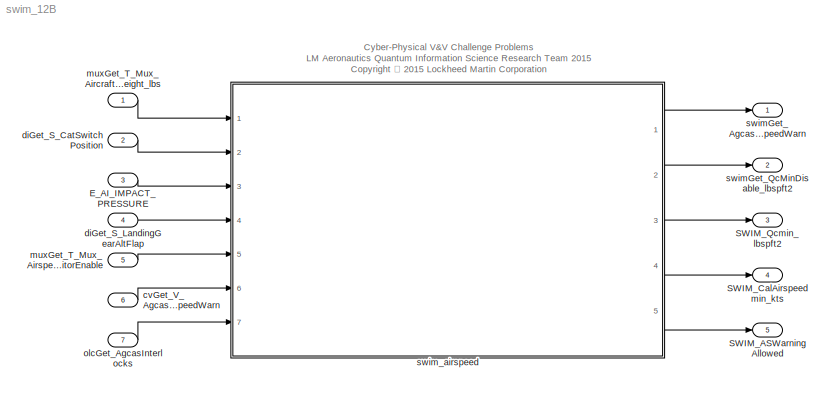
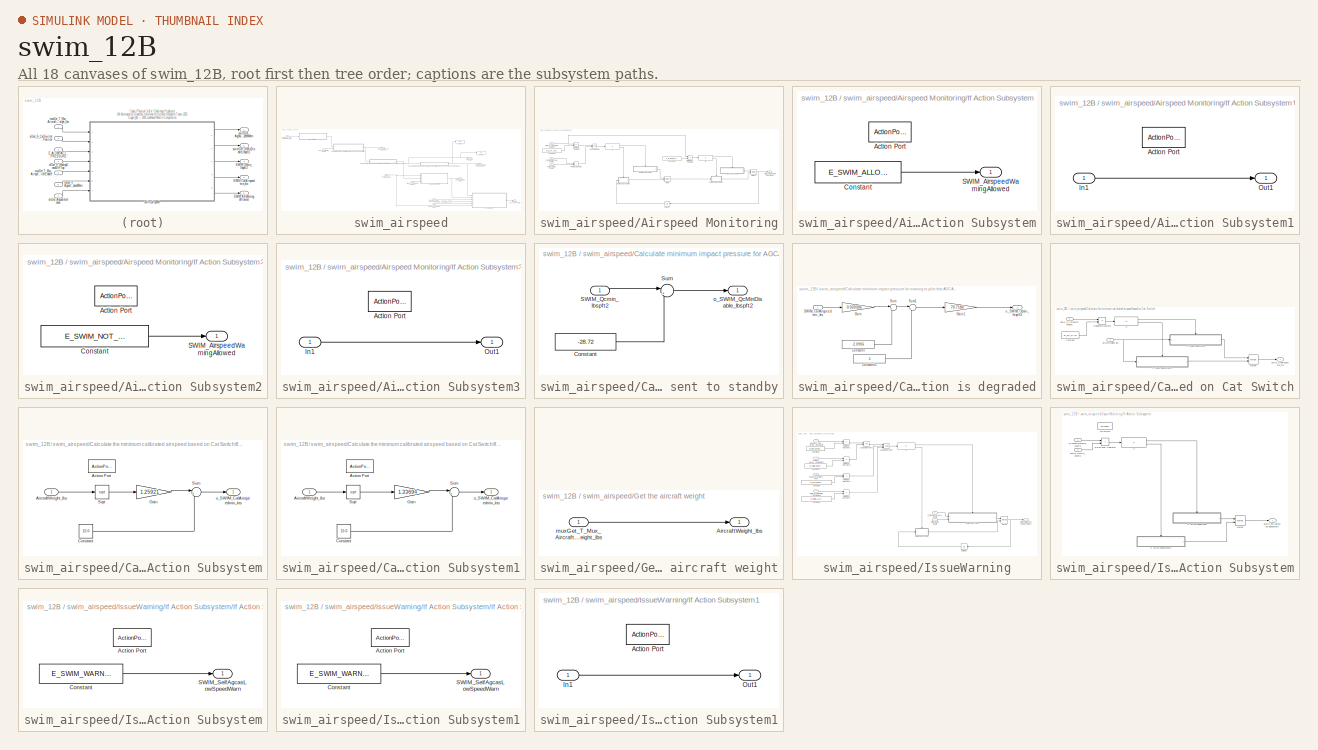
[diagram: thumbnail index - all 18 canvases of the model, root first then tree order]
MODEL swim_12B
KIND model
BLOCK [Inport] E_AI_IMPACT_PRESSURE
  IconDisplay = Port number
  OutDataTypeStr = double
  Port = 3
  SID = 126
BLOCK [Outport] SWIM_ASWarningAllowed
  IconDisplay = Port number
  Port = 5
  SID = 142
BLOCK [Outport] SWIM_CalAirspeedmin_kts
  IconDisplay = Port number
  Port = 4
  SID = 140
BLOCK [Outport] SWIM_Qcmin_lbspft2
  IconDisplay = Port number
  Port = 3
  SID = 134
BLOCK [Inport] cvGet_V_AgcasLowSpeedWarn
  IconDisplay = Port number
  OutDataTypeStr = boolean
  Port = 6
  SID = 129
BLOCK [Inport] diGet_S_CatSwitchPosition
  IconDisplay = Port number
  OutDataTypeStr = int32
  Port = 2
  SID = 125
BLOCK [Inport] diGet_S_LandingGearAltFlap
  IconDisplay = Port number
  OutDataTypeStr = boolean
  Port = 4
  SID = 127
BLOCK [Inport] muxGet_T_Mux_AircraftGrossWeight_lbs
  IconDisplay = Port number
  OutDataTypeStr = double
  SID = 124
BLOCK [Inport] muxGet_T_Mux_AirspeedMonitorEnable
  IconDisplay = Port number
  OutDataTypeStr = boolean
  Port = 5
  SID = 128
BLOCK [Inport] olcGet_AgcasInterlocks
  IconDisplay = Port number
  OutDataTypeStr = boolean
  Port = 7
  SID = 130
BLOCK [Outport] swimGet_AgcasLowSpeedWarn
  IconDisplay = Port number
  SID = 131
BLOCK [Outport] swimGet_QcMinDisable_lbspft2
  IconDisplay = Port number
  Port = 2
  SID = 132
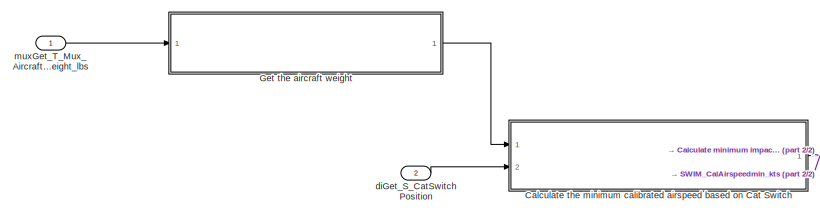
[diagram: swim_airspeed - part 1/2, top left region]
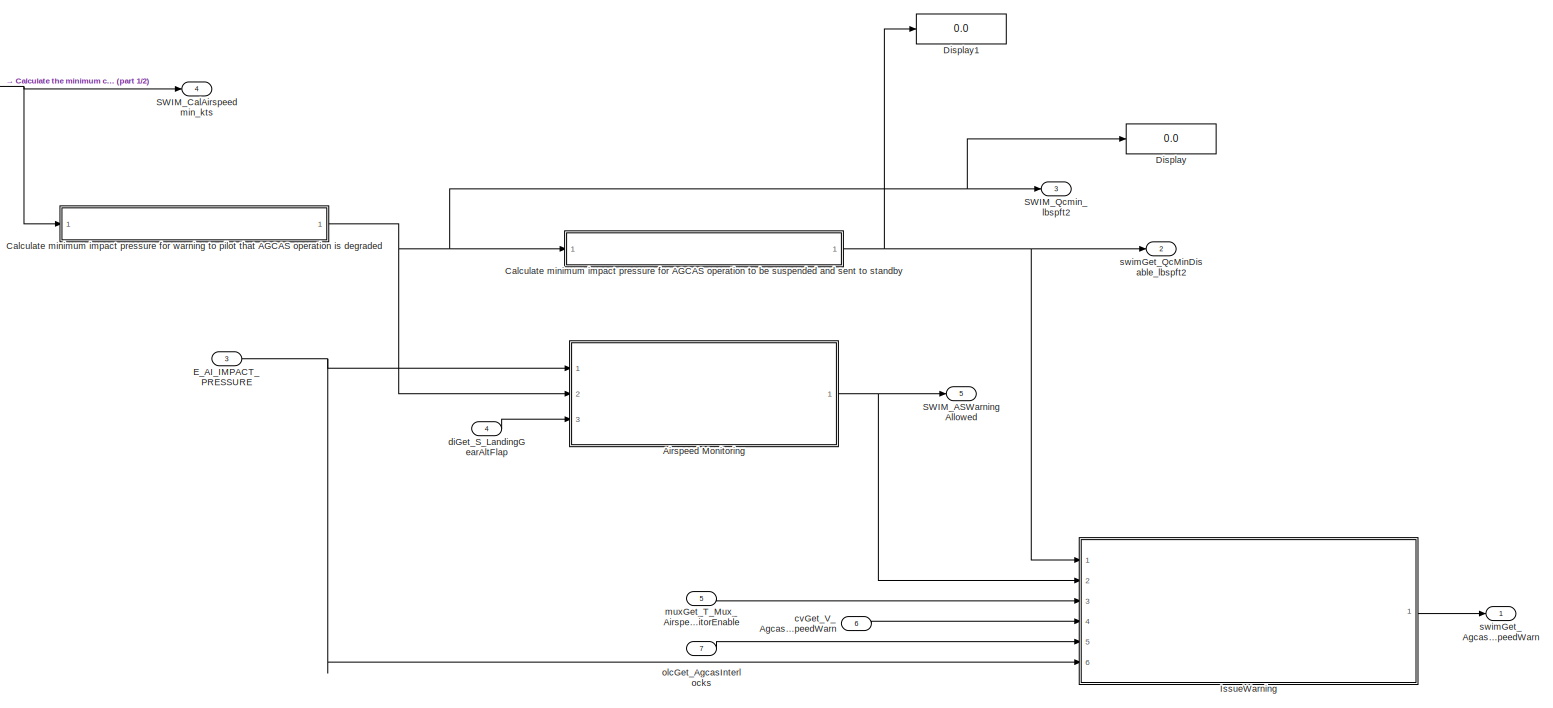
[diagram: swim_airspeed - part 2/2, right side, full height]
BLOCK [SubSystem] swim_airspeed
  FunctionWithSeparateData = off
  MaskHideContents = off
  MinAlgLoopOccurrences = off
  Opaque = off
  Ports = [7, 5]
  PropExecContextOutsideSubsystem = off
  RTWSystemCode = Auto
  RequestExecContextInheritance = off
  SID = 1
BLOCK [SubSystem] swim_airspeed/Airspeed Monitoring
  FunctionWithSeparateData = off
  MaskHideContents = off
  MinAlgLoopOccurrences = off
  Opaque = off
  Ports = [3, 1]
  PropExecContextOutsideSubsystem = off
  RTWSystemCode = Auto
  RequestExecContextInheritance = off
  SID = 9
BLOCK [Constant] swim_airspeed/Airspeed Monitoring/Constant1
  SID = 13
  Value = E_DI_UP_AND_NORMAL
BLOCK [Constant] swim_airspeed/Airspeed Monitoring/Constant2
  SID = 14
  Value = E_DI_DOWN_OR_LOCKED
BLOCK [If] swim_airspeed/Airspeed Monitoring/If
  IfExpression = u1
  Ports = [1, 2]
  SID = 15
BLOCK [SubSystem] swim_airspeed/Airspeed Monitoring/If Action Subsystem
  FunctionWithSeparateData = off
  MaskHideContents = off
  MinAlgLoopOccurrences = off
  Opaque = off
  Ports = [0, 1, 0, 0, 0, 0, 0, 1]
  PropExecContextOutsideSubsystem = off
  RTWSystemCode = Auto
  RequestExecContextInheritance = off
  SID = 16
  TreatAsAtomicUnit = on
BLOCK [ActionPort] swim_airspeed/Airspeed Monitoring/If Action Subsystem/Action Port
  ActionType = then
  SID = 17
BLOCK [Constant] swim_airspeed/Airspeed Monitoring/If Action Subsystem/Constant
  SID = 18
  Value = E_SWIM_ALLOWED
BLOCK [Outport] swim_airspeed/Airspeed Monitoring/If Action Subsystem/SWIM_AirspeedWarningAllowed
  IconDisplay = Port number
  SID = 19
BLOCK [SubSystem] swim_airspeed/Airspeed Monitoring/If Action Subsystem1
  FunctionWithSeparateData = off
  MaskHideContents = off
  MinAlgLoopOccurrences = off
  Opaque = off
  Ports = [1, 1, 0, 0, 0, 0, 0, 1]
  PropExecContextOutsideSubsystem = off
  RTWSystemCode = Auto
  RequestExecContextInheritance = off
  SID = 20
  TreatAsAtomicUnit = on
BLOCK [ActionPort] swim_airspeed/Airspeed Monitoring/If Action Subsystem1/Action Port
  ActionType = else
  SID = 22
BLOCK [Inport] swim_airspeed/Airspeed Monitoring/If Action Subsystem1/In1
  IconDisplay = Port number
  SID = 21
BLOCK [Outport] swim_airspeed/Airspeed Monitoring/If Action Subsystem1/Out1
  IconDisplay = Port number
  SID = 23
BLOCK [SubSystem] swim_airspeed/Airspeed Monitoring/If Action Subsystem2
  FunctionWithSeparateData = off
  MaskHideContents = off
  MinAlgLoopOccurrences = off
  Opaque = off
  Ports = [0, 1, 0, 0, 0, 0, 0, 1]
  PropExecContextOutsideSubsystem = off
  RTWSystemCode = Auto
  RequestExecContextInheritance = off
  SID = 24
  TreatAsAtomicUnit = on
BLOCK [ActionPort] swim_airspeed/Airspeed Monitoring/If Action Subsystem2/Action Port
  ActionType = then
  SID = 25
BLOCK [Constant] swim_airspeed/Airspeed Monitoring/If Action Subsystem2/Constant
  SID = 26
  Value = E_SWIM_NOT_ALLOWED
BLOCK [Outport] swim_airspeed/Airspeed Monitoring/If Action Subsystem2/SWIM_AirspeedWarningAllowed
  IconDisplay = Port number
  SID = 27
BLOCK [SubSystem] swim_airspeed/Airspeed Monitoring/If Action Subsystem3
  FunctionWithSeparateData = off
  MaskHideContents = off
  MinAlgLoopOccurrences = off
  Opaque = off
  Ports = [1, 1, 0, 0, 0, 0, 0, 1]
  PropExecContextOutsideSubsystem = off
  RTWSystemCode = Auto
  RequestExecContextInheritance = off
  SID = 28
  TreatAsAtomicUnit = on
BLOCK [ActionPort] swim_airspeed/Airspeed Monitoring/If Action Subsystem3/Action Port
  ActionType = else
  SID = 30
BLOCK [Inport] swim_airspeed/Airspeed Monitoring/If Action Subsystem3/In1
  IconDisplay = Port number
  SID = 29
BLOCK [Outport] swim_airspeed/Airspeed Monitoring/If Action Subsystem3/Out1
  IconDisplay = Port number
  SID = 31
BLOCK [If] swim_airspeed/Airspeed Monitoring/If1
  IfExpression = u1
  Ports = [1, 2]
  SID = 32
BLOCK [Logic] swim_airspeed/Airspeed Monitoring/Logical Operator
  AllPortsSameDT = off
  OutDataTypeStr = boolean
  Ports = [2, 1]
  SID = 33
BLOCK [Merge] swim_airspeed/Airspeed Monitoring/Merge
  Ports = [2, 1]
  SID = 34
BLOCK [Merge] swim_airspeed/Airspeed Monitoring/Merge1
  Ports = [2, 1]
  SID = 35
BLOCK [RelationalOperator] swim_airspeed/Airspeed Monitoring/Relational Operator
  InputSameDT = off
  Operator = >
  OutDataTypeStr = boolean
  Ports = [2, 1]
  SID = 36
BLOCK [RelationalOperator] swim_airspeed/Airspeed Monitoring/Relational Operator2
  InputSameDT = off
  Operator = ==
  OutDataTypeStr = boolean
  Ports = [2, 1]
  SID = 37
BLOCK [RelationalOperator] swim_airspeed/Airspeed Monitoring/Relational Operator3
  InputSameDT = off
  Operator = ==
  OutDataTypeStr = boolean
  Ports = [2, 1]
  SID = 38
BLOCK [Outport] swim_airspeed/Airspeed Monitoring/SWIM_AirspeedWarningAllowed
  IconDisplay = Port number
  SID = 40
BLOCK [Inport] swim_airspeed/Airspeed Monitoring/SWIM_Qcmin_lbspft2
  IconDisplay = Port number
  Port = 2
  SID = 11
BLOCK [Inport] swim_airspeed/Airspeed Monitoring/S_ImpactPressure_lbspft2
  IconDisplay = Port number
  SID = 10
BLOCK [UnitDelay] swim_airspeed/Airspeed Monitoring/Unit Delay
  InitialCondition = E_SWIM_NOT_ALLOWED
  InputProcessing = Elements as channels (sample based)
  SID = 39
  SampleTime = -1
BLOCK [Inport] swim_airspeed/Airspeed Monitoring/diGet_S_LandingGearAltFlap
  IconDisplay = Port number
  Port = 3
  SID = 12
BLOCK [SubSystem] swim_airspeed/Calculate minimum impact pressure for AGCAS operation to be suspended and sent to standby
  FunctionWithSeparateData = off
  MaskHideContents = off
  MinAlgLoopOccurrences = off
  Opaque = off
  Ports = [1, 1]
  PropExecContextOutsideSubsystem = off
  RTWSystemCode = Auto
  RequestExecContextInheritance = off
  SID = 41
BLOCK [Constant] swim_airspeed/Calculate minimum impact pressure for AGCAS operation to be suspended and sent to standby/Constant
  SID = 43
  Value = -28.72
BLOCK [Inport] swim_airspeed/Calculate minimum impact pressure for AGCAS operation to be suspended and sent to standby/SWIM_Qcmin_lbspft2
  IconDisplay = Port number
  SID = 42
BLOCK [Sum] swim_airspeed/Calculate minimum impact pressure for AGCAS operation to be suspended and sent to standby/Sum
  IconShape = round
  InputSameDT = off
  Inputs = |++
  OutDataTypeStr = Inherit: Inherit via internal rule
  Ports = [2, 1]
  SID = 44
  SaturateOnIntegerOverflow = off
BLOCK [Outport] swim_airspeed/Calculate minimum impact pressure for AGCAS operation to be suspended and sent to standby/o_SWIM_QcMinDisable_lbspft2
  IconDisplay = Port number
  SID = 45
BLOCK [SubSystem] swim_airspeed/Calculate minimum impact pressure for warning to pilot that AGCAS operation is degraded
  FunctionWithSeparateData = off
  MaskHideContents = off
  MinAlgLoopOccurrences = off
  Opaque = off
  Ports = [1, 1]
  PropExecContextOutsideSubsystem = off
  RTWSystemCode = Auto
  RequestExecContextInheritance = off
  SID = 46
BLOCK [Constant] swim_airspeed/Calculate minimum impact pressure for warning to pilot that AGCAS operation is degraded/Constant
  SID = 48
  Value = -2.0906
BLOCK [Constant] swim_airspeed/Calculate minimum impact pressure for warning to pilot that AGCAS operation is degraded/Constant1
  SID = 49
  Value = .1
BLOCK [Gain] swim_airspeed/Calculate minimum impact pressure for warning to pilot that AGCAS operation is degraded/Gain
  Gain = 0.020306
  OutDataTypeStr = Inherit: Inherit via internal rule
  ParamDataTypeStr = Inherit: Inherit via internal rule
  SID = 50
  SaturateOnIntegerOverflow = off
BLOCK [Gain] swim_airspeed/Calculate minimum impact pressure for warning to pilot that AGCAS operation is degraded/Gain1
  Gain = 70.7184
  OutDataTypeStr = Inherit: Inherit via internal rule
  ParamDataTypeStr = Inherit: Inherit via internal rule
  SID = 51
  SaturateOnIntegerOverflow = off
BLOCK [Inport] swim_airspeed/Calculate minimum impact pressure for warning to pilot that AGCAS operation is degraded/SWIM_CalAirspeedmin_kts
  IconDisplay = Port number
  SID = 47
BLOCK [Sum] swim_airspeed/Calculate minimum impact pressure for warning to pilot that AGCAS operation is degraded/Sum
  IconShape = round
  InputSameDT = off
  Inputs = |++
  OutDataTypeStr = Inherit: Inherit via internal rule
  Ports = [2, 1]
  SID = 52
  SaturateOnIntegerOverflow = off
BLOCK [Sum] swim_airspeed/Calculate minimum impact pressure for warning to pilot that AGCAS operation is degraded/Sum1
  IconShape = round
  InputSameDT = off
  Inputs = |++
  OutDataTypeStr = Inherit: Inherit via internal rule
  Ports = [2, 1]
  SID = 53
  SaturateOnIntegerOverflow = off
BLOCK [Outport] swim_airspeed/Calculate minimum impact pressure for warning to pilot that AGCAS operation is degraded/o_SWIM_Qcmin_lbspft2
  IconDisplay = Port number
  SID = 54
BLOCK [SubSystem] swim_airspeed/Calculate the minimum calibrated airspeed based on Cat Switch
  FunctionWithSeparateData = off
  MaskHideContents = off
  MinAlgLoopOccurrences = off
  Opaque = off
  Ports = [2, 1]
  PropExecContextOutsideSubsystem = off
  RTWSystemCode = Auto
  RequestExecContextInheritance = off
  SID = 55
BLOCK [Inport] swim_airspeed/Calculate the minimum calibrated airspeed based on Cat Switch/AircraftWeight_lbs
  IconDisplay = Port number
  SID = 56
BLOCK [Constant] swim_airspeed/Calculate the minimum calibrated airspeed based on Cat Switch/Constant
  SID = 58
  Value = E_DI_CATI
BLOCK [If] swim_airspeed/Calculate the minimum calibrated airspeed based on Cat Switch/If
  IfExpression = u1
  Ports = [1, 2]
  SID = 59
BLOCK [SubSystem] swim_airspeed/Calculate the minimum calibrated airspeed based on Cat Switch/If Action Subsystem
  FunctionWithSeparateData = off
  MaskHideContents = off
  MinAlgLoopOccurrences = off
  Opaque = off
  Ports = [1, 1, 0, 0, 0, 0, 0, 1]
  PropExecContextOutsideSubsystem = off
  RTWSystemCode = Auto
  RequestExecContextInheritance = off
  SID = 60
  TreatAsAtomicUnit = on
BLOCK [ActionPort] swim_airspeed/Calculate the minimum calibrated airspeed based on Cat Switch/If Action Subsystem/Action Port
  ActionType = then
  SID = 62
BLOCK [Inport] swim_airspeed/Calculate the minimum calibrated airspeed based on Cat Switch/If Action Subsystem/AircraftWeight_lbs
  IconDisplay = Port number
  SID = 61
BLOCK [Constant] swim_airspeed/Calculate the minimum calibrated airspeed based on Cat Switch/If Action Subsystem/Constant
  SID = 63
  Value = 10.0
BLOCK [Gain] swim_airspeed/Calculate the minimum calibrated airspeed based on Cat Switch/If Action Subsystem/Gain
  Gain = 1.25921
  OutDataTypeStr = Inherit: Inherit via internal rule
  ParamDataTypeStr = Inherit: Inherit via internal rule
  SID = 64
  SaturateOnIntegerOverflow = off
BLOCK [Sqrt] swim_airspeed/Calculate the minimum calibrated airspeed based on Cat Switch/If Action Subsystem/Sqrt
  SID = 137
BLOCK [Sum] swim_airspeed/Calculate the minimum calibrated airspeed based on Cat Switch/If Action Subsystem/Sum
  IconShape = round
  InputSameDT = off
  Inputs = |++
  OutDataTypeStr = Inherit: Inherit via internal rule
  Ports = [2, 1]
  SID = 66
  SaturateOnIntegerOverflow = off
BLOCK [Outport] swim_airspeed/Calculate the minimum calibrated airspeed based on Cat Switch/If Action Subsystem/o_SWIM_CalAirspeedmin_kts
  IconDisplay = Port number
  SID = 67
BLOCK [SubSystem] swim_airspeed/Calculate the minimum calibrated airspeed based on Cat Switch/If Action Subsystem1
  FunctionWithSeparateData = off
  MaskHideContents = off
  MinAlgLoopOccurrences = off
  Opaque = off
  Ports = [1, 1, 0, 0, 0, 0, 0, 1]
  PropExecContextOutsideSubsystem = off
  RTWSystemCode = Auto
  RequestExecContextInheritance = off
  SID = 68
  TreatAsAtomicUnit = on
BLOCK [ActionPort] swim_airspeed/Calculate the minimum calibrated airspeed based on Cat Switch/If Action Subsystem1/Action Port
  ActionType = else
  SID = 70
BLOCK [Inport] swim_airspeed/Calculate the minimum calibrated airspeed based on Cat Switch/If Action Subsystem1/AircraftWeight_lbs
  IconDisplay = Port number
  SID = 69
BLOCK [Constant] swim_airspeed/Calculate the minimum calibrated airspeed based on Cat Switch/If Action Subsystem1/Constant
  SID = 71
  Value = 10.0
BLOCK [Gain] swim_airspeed/Calculate the minimum calibrated airspeed based on Cat Switch/If Action Subsystem1/Gain
  Gain = 1.33694
  OutDataTypeStr = Inherit: Inherit via internal rule
  ParamDataTypeStr = Inherit: Inherit via internal rule
  SID = 72
  SaturateOnIntegerOverflow = off
BLOCK [Sqrt] swim_airspeed/Calculate the minimum calibrated airspeed based on Cat Switch/If Action Subsystem1/Sqrt
  SID = 138
BLOCK [Sum] swim_airspeed/Calculate the minimum calibrated airspeed based on Cat Switch/If Action Subsystem1/Sum
  IconShape = round
  InputSameDT = off
  Inputs = |++
  OutDataTypeStr = Inherit: Inherit via internal rule
  Ports = [2, 1]
  SID = 74
  SaturateOnIntegerOverflow = off
BLOCK [Outport] swim_airspeed/Calculate the minimum calibrated airspeed based on Cat Switch/If Action Subsystem1/o_SWIM_CalAirspeedmin_kts
  IconDisplay = Port number
  SID = 75
BLOCK [Merge] swim_airspeed/Calculate the minimum calibrated airspeed based on Cat Switch/Merge
  Ports = [2, 1]
  SID = 76
BLOCK [RelationalOperator] swim_airspeed/Calculate the minimum calibrated airspeed based on Cat Switch/Relational Operator
  InputSameDT = off
  Operator = ==
  OutDataTypeStr = boolean
  Ports = [2, 1]
  SID = 77
BLOCK [Outport] swim_airspeed/Calculate the minimum calibrated airspeed based on Cat Switch/SWIM_CalAirspeedmin_kts
  IconDisplay = Port number
  SID = 78
BLOCK [Inport] swim_airspeed/Calculate the minimum calibrated airspeed based on Cat Switch/diGet_S_CatSwitchPosition
  IconDisplay = Port number
  Port = 2
  SID = 57
BLOCK [Display] swim_airspeed/Display
  Decimation = 1
  Lockdown = off
  Ports = [1]
  SID = 135
BLOCK [Display] swim_airspeed/Display1
  Decimation = 1
  Lockdown = off
  Ports = [1]
  SID = 136
BLOCK [Inport] swim_airspeed/E_AI_IMPACT_PRESSURE
  IconDisplay = Port number
  Port = 3
  SID = 4
BLOCK [SubSystem] swim_airspeed/Get the aircraft weight
  FunctionWithSeparateData = off
  MaskHideContents = off
  MinAlgLoopOccurrences = off
  Opaque = off
  Ports = [1, 1]
  PropExecContextOutsideSubsystem = off
  RTWSystemCode = Auto
  RequestExecContextInheritance = off
  SID = 79
BLOCK [Outport] swim_airspeed/Get the aircraft weight/AircraftWeight_lbs
  IconDisplay = Port number
  SID = 81
BLOCK [Inport] swim_airspeed/Get the aircraft weight/muxGet_T_Mux_AircraftGrossWeight_lbs
  IconDisplay = Port number
  SID = 80
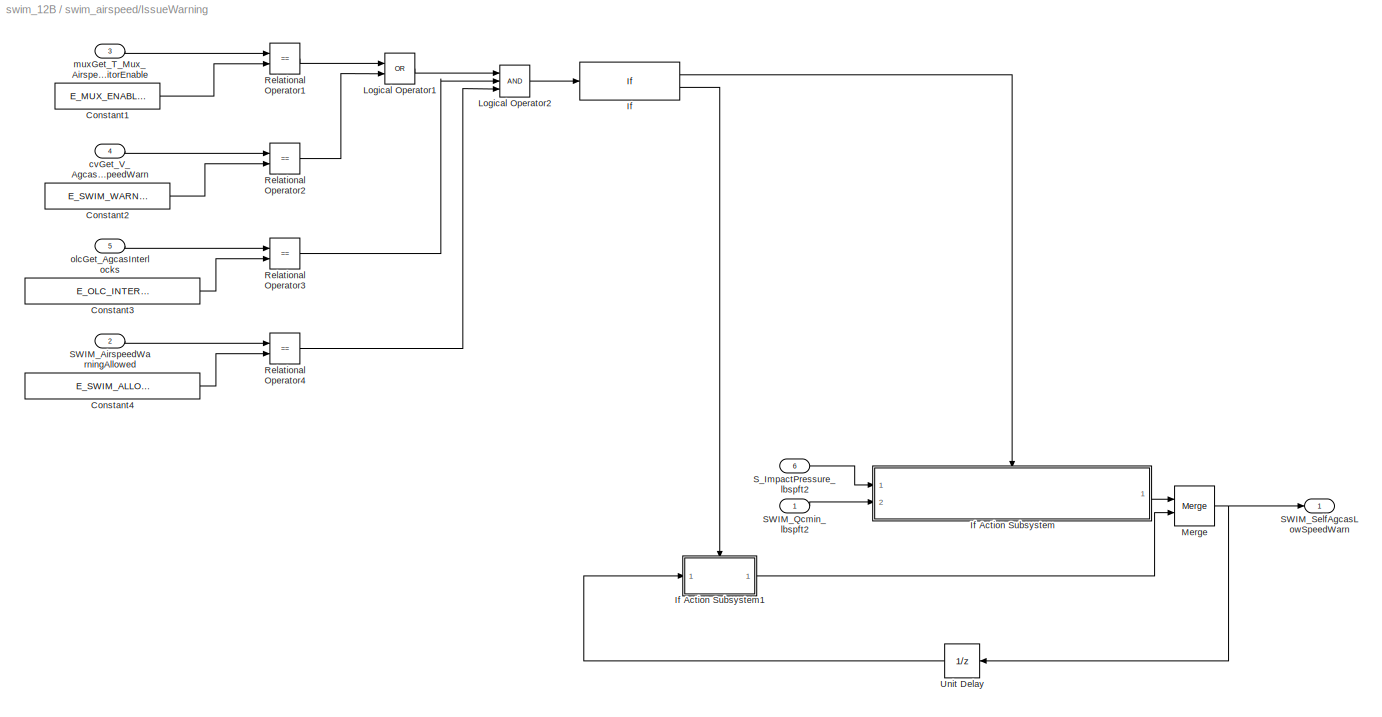
BLOCK [SubSystem] swim_airspeed/IssueWarning
  FunctionWithSeparateData = off
  MaskHideContents = off
  MinAlgLoopOccurrences = off
  Opaque = off
  Ports = [6, 1]
  PropExecContextOutsideSubsystem = off
  RTWSystemCode = Auto
  RequestExecContextInheritance = off
  SID = 82
BLOCK [Constant] swim_airspeed/IssueWarning/Constant1
  SID = 88
  Value = E_MUX_ENABLED
BLOCK [Constant] swim_airspeed/IssueWarning/Constant2
  SID = 89
  Value = E_SWIM_WARNING_ON
BLOCK [Constant] swim_airspeed/IssueWarning/Constant3
  SID = 90
  Value = E_OLC_INTERLOCK_NOT_FAILED
BLOCK [Constant] swim_airspeed/IssueWarning/Constant4
  SID = 91
  Value = E_SWIM_ALLOWED
BLOCK [If] swim_airspeed/IssueWarning/If
  IfExpression = u1
  Ports = [1, 2]
  SID = 92
BLOCK [SubSystem] swim_airspeed/IssueWarning/If Action Subsystem
  FunctionWithSeparateData = off
  MaskHideContents = off
  MinAlgLoopOccurrences = off
  Opaque = off
  Ports = [2, 1, 0, 0, 0, 0, 0, 1]
  PropExecContextOutsideSubsystem = off
  RTWSystemCode = Auto
  RequestExecContextInheritance = off
  SID = 93
  TreatAsAtomicUnit = on
BLOCK [ActionPort] swim_airspeed/IssueWarning/If Action Subsystem/Action Port
  ActionType = then
  SID = 96
BLOCK [If] swim_airspeed/IssueWarning/If Action Subsystem/If
  IfExpression = u1
  Ports = [1, 2]
  SID = 97
BLOCK [SubSystem] swim_airspeed/IssueWarning/If Action Subsystem/If Action Subsystem
  FunctionWithSeparateData = off
  MaskHideContents = off
  MinAlgLoopOccurrences = off
  Opaque = off
  Ports = [0, 1, 0, 0, 0, 0, 0, 1]
  PropExecContextOutsideSubsystem = off
  RTWSystemCode = Auto
  RequestExecContextInheritance = off
  SID = 98
  TreatAsAtomicUnit = on
BLOCK [ActionPort] swim_airspeed/IssueWarning/If Action Subsystem/If Action Subsystem/Action Port
  ActionType = then
  SID = 99
BLOCK [Constant] swim_airspeed/IssueWarning/If Action Subsystem/If Action Subsystem/Constant
  SID = 100
  Value = E_SWIM_WARNING_ON
BLOCK [Outport] swim_airspeed/IssueWarning/If Action Subsystem/If Action Subsystem/SWIM_SelfAgcasLowSpeedWarn
  IconDisplay = Port number
  SID = 101
BLOCK [SubSystem] swim_airspeed/IssueWarning/If Action Subsystem/If Action Subsystem1
  FunctionWithSeparateData = off
  MaskHideContents = off
  MinAlgLoopOccurrences = off
  Opaque = off
  Ports = [0, 1, 0, 0, 0, 0, 0, 1]
  PropExecContextOutsideSubsystem = off
  RTWSystemCode = Auto
  RequestExecContextInheritance = off
  SID = 102
  TreatAsAtomicUnit = on
BLOCK [ActionPort] swim_airspeed/IssueWarning/If Action Subsystem/If Action Subsystem1/Action Port
  ActionType = else
  SID = 103
BLOCK [Constant] swim_airspeed/IssueWarning/If Action Subsystem/If Action Subsystem1/Constant
  SID = 104
  Value = E_SWIM_WARNING_OFF
BLOCK [Outport] swim_airspeed/IssueWarning/If Action Subsystem/If Action Subsystem1/SWIM_SelfAgcasLowSpeedWarn
  IconDisplay = Port number
  SID = 105
BLOCK [Merge] swim_airspeed/IssueWarning/If Action Subsystem/Merge
  Ports = [2, 1]
  SID = 106
BLOCK [RelationalOperator] swim_airspeed/IssueWarning/If Action Subsystem/Relational Operator
  InputSameDT = off
  Operator = <
  OutDataTypeStr = boolean
  Ports = [2, 1]
  SID = 107
BLOCK [Inport] swim_airspeed/IssueWarning/If Action Subsystem/SWIM_Qcmin_lbspft2
  IconDisplay = Port number
  Port = 2
  SID = 95
BLOCK [Outport] swim_airspeed/IssueWarning/If Action Subsystem/SWIM_SelfAgcasLowSpeedWarn
  IconDisplay = Port number
  SID = 108
BLOCK [Inport] swim_airspeed/IssueWarning/If Action Subsystem/S_ImpactPressure_lbspft2
  IconDisplay = Port number
  SID = 94
BLOCK [SubSystem] swim_airspeed/IssueWarning/If Action Subsystem1
  FunctionWithSeparateData = off
  MaskHideContents = off
  MinAlgLoopOccurrences = off
  Opaque = off
  Ports = [1, 1, 0, 0, 0, 0, 0, 1]
  PropExecContextOutsideSubsystem = off
  RTWSystemCode = Auto
  RequestExecContextInheritance = off
  SID = 109
  TreatAsAtomicUnit = on
BLOCK [ActionPort] swim_airspeed/IssueWarning/If Action Subsystem1/Action Port
  ActionType = else
  SID = 111
BLOCK [Inport] swim_airspeed/IssueWarning/If Action Subsystem1/In1
  IconDisplay = Port number
  SID = 110
BLOCK [Outport] swim_airspeed/IssueWarning/If Action Subsystem1/Out1
  IconDisplay = Port number
  SID = 112
BLOCK [Logic] swim_airspeed/IssueWarning/Logical Operator1
  AllPortsSameDT = off
  Operator = OR
  OutDataTypeStr = boolean
  Ports = [2, 1]
  SID = 113
BLOCK [Logic] swim_airspeed/IssueWarning/Logical Operator2
  AllPortsSameDT = off
  Inputs = 3
  OutDataTypeStr = boolean
  Ports = [3, 1]
  SID = 114
BLOCK [Merge] swim_airspeed/IssueWarning/Merge
  Ports = [2, 1]
  SID = 115
BLOCK [RelationalOperator] swim_airspeed/IssueWarning/Relational Operator1
  InputSameDT = off
  Operator = ==
  OutDataTypeStr = boolean
  Ports = [2, 1]
  SID = 116
BLOCK [RelationalOperator] swim_airspeed/IssueWarning/Relational Operator2
  InputSameDT = off
  Operator = ==
  OutDataTypeStr = boolean
  Ports = [2, 1]
  SID = 117
BLOCK [RelationalOperator] swim_airspeed/IssueWarning/Relational Operator3
  InputSameDT = off
  Operator = ==
  OutDataTypeStr = boolean
  Ports = [2, 1]
  SID = 118
BLOCK [RelationalOperator] swim_airspeed/IssueWarning/Relational Operator4
  InputSameDT = off
  Operator = ==
  OutDataTypeStr = boolean
  Ports = [2, 1]
  SID = 119
BLOCK [Inport] swim_airspeed/IssueWarning/SWIM_AirspeedWarningAllowed
  IconDisplay = Port number
  Port = 2
  SID = 86
BLOCK [Inport] swim_airspeed/IssueWarning/SWIM_Qcmin_lbspft2
  IconDisplay = Port number
  SID = 87
BLOCK [Outport] swim_airspeed/IssueWarning/SWIM_SelfAgcasLowSpeedWarn
  IconDisplay = Port number
  SID = 121
BLOCK [Inport] swim_airspeed/IssueWarning/S_ImpactPressure_lbspft2
  IconDisplay = Port number
  Port = 6
  SID = 143
BLOCK [UnitDelay] swim_airspeed/IssueWarning/Unit Delay
  InitialCondition = E_SWIM_WARNING_OFF
  InputProcessing = Elements as channels (sample based)
  SID = 120
  SampleTime = -1
BLOCK [Inport] swim_airspeed/IssueWarning/cvGet_V_AgcasLowSpeedWarn
  IconDisplay = Port number
  Port = 4
  SID = 84
BLOCK [Inport] swim_airspeed/IssueWarning/muxGet_T_Mux_AirspeedMonitorEnable
  IconDisplay = Port number
  Port = 3
  SID = 83
BLOCK [Inport] swim_airspeed/IssueWarning/olcGet_AgcasInterlocks
  IconDisplay = Port number
  Port = 5
  SID = 85
BLOCK [Outport] swim_airspeed/SWIM_ASWarningAllowed
  IconDisplay = Port number
  Port = 5
  SID = 141
BLOCK [Outport] swim_airspeed/SWIM_CalAirspeedmin_kts
  IconDisplay = Port number
  Port = 4
  SID = 139
BLOCK [Outport] swim_airspeed/SWIM_Qcmin_lbspft2
  IconDisplay = Port number
  Port = 3
  SID = 133
BLOCK [Inport] swim_airspeed/cvGet_V_AgcasLowSpeedWarn
  IconDisplay = Port number
  Port = 6
  SID = 7
BLOCK [Inport] swim_airspeed/diGet_S_CatSwitchPosition
  IconDisplay = Port number
  Port = 2
  SID = 3
BLOCK [Inport] swim_airspeed/diGet_S_LandingGearAltFlap
  IconDisplay = Port number
  Port = 4
  SID = 5
BLOCK [Inport] swim_airspeed/muxGet_T_Mux_AircraftGrossWeight_lbs
  IconDisplay = Port number
  SID = 2
BLOCK [Inport] swim_airspeed/muxGet_T_Mux_AirspeedMonitorEnable
  IconDisplay = Port number
  Port = 5
  SID = 6
BLOCK [Inport] swim_airspeed/olcGet_AgcasInterlocks
  IconDisplay = Port number
  Port = 7
  SID = 8
BLOCK [Outport] swim_airspeed/swimGet_AgcasLowSpeedWarn
  IconDisplay = Port number
  SID = 122
BLOCK [Outport] swim_airspeed/swimGet_QcMinDisable_lbspft2
  IconDisplay = Port number
  Port = 2
  SID = 123
ANNOTATION (root): Cyber-Physical V&V Challenge Problems\nLM Aeronautics Quantum Information Science Research Team 2015\nCopyright <copyright redacted>
LINE E_AI_IMPACT_PRESSURE:1 -> swim_airspeed:3
LINE cvGet_V_AgcasLowSpeedWarn:1 -> swim_airspeed:6
LINE diGet_S_CatSwitchPosition:1 -> swim_airspeed:2
LINE diGet_S_LandingGearAltFlap:1 -> swim_airspeed:4
LINE muxGet_T_Mux_AircraftGrossWeight_lbs:1 -> swim_airspeed:1
LINE muxGet_T_Mux_AirspeedMonitorEnable:1 -> swim_airspeed:5
LINE olcGet_AgcasInterlocks:1 -> swim_airspeed:7
LINE swim_airspeed/Airspeed Monitoring/Constant1:1 -> swim_airspeed/Airspeed Monitoring/Relational Operator2:2
LINE swim_airspeed/Airspeed Monitoring/Constant2:1 -> swim_airspeed/Airspeed Monitoring/Relational Operator3:2
LINE swim_airspeed/Airspeed Monitoring/If Action Subsystem/Constant:1 -> swim_airspeed/Airspeed Monitoring/If Action Subsystem/SWIM_AirspeedWarningAllowed:1
LINE swim_airspeed/Airspeed Monitoring/If Action Subsystem1/In1:1 -> swim_airspeed/Airspeed Monitoring/If Action Subsystem1/Out1:1
LINE swim_airspeed/Airspeed Monitoring/If Action Subsystem1:1 -> swim_airspeed/Airspeed Monitoring/Merge:2
LINE swim_airspeed/Airspeed Monitoring/If Action Subsystem2/Constant:1 -> swim_airspeed/Airspeed Monitoring/If Action Subsystem2/SWIM_AirspeedWarningAllowed:1
LINE swim_airspeed/Airspeed Monitoring/If Action Subsystem2:1 -> swim_airspeed/Airspeed Monitoring/Merge1:1
LINE swim_airspeed/Airspeed Monitoring/If Action Subsystem3/In1:1 -> swim_airspeed/Airspeed Monitoring/If Action Subsystem3/Out1:1
LINE swim_airspeed/Airspeed Monitoring/If Action Subsystem3:1 -> swim_airspeed/Airspeed Monitoring/Merge1:2
LINE swim_airspeed/Airspeed Monitoring/If Action Subsystem:1 -> swim_airspeed/Airspeed Monitoring/Merge:1
LINE swim_airspeed/Airspeed Monitoring/If1:1 -> swim_airspeed/Airspeed Monitoring/If Action Subsystem2:ifaction
LINE swim_airspeed/Airspeed Monitoring/If1:2 -> swim_airspeed/Airspeed Monitoring/If Action Subsystem3:ifaction
LINE swim_airspeed/Airspeed Monitoring/If:1 -> swim_airspeed/Airspeed Monitoring/If Action Subsystem:ifaction
LINE swim_airspeed/Airspeed Monitoring/If:2 -> swim_airspeed/Airspeed Monitoring/If Action Subsystem1:ifaction
LINE swim_airspeed/Airspeed Monitoring/Logical Operator:1 -> swim_airspeed/Airspeed Monitoring/If:1
NET swim_airspeed/Airspeed Monitoring/Merge1:1 -> swim_airspeed/Airspeed Monitoring/SWIM_AirspeedWarningAllowed:1, swim_airspeed/Airspeed Monitoring/Unit Delay:1
LINE swim_airspeed/Airspeed Monitoring/Merge:1 -> swim_airspeed/Airspeed Monitoring/If Action Subsystem3:1
LINE swim_airspeed/Airspeed Monitoring/Relational Operator2:1 -> swim_airspeed/Airspeed Monitoring/Logical Operator:1
LINE swim_airspeed/Airspeed Monitoring/Relational Operator3:1 -> swim_airspeed/Airspeed Monitoring/If1:1
LINE swim_airspeed/Airspeed Monitoring/Relational Operator:1 -> swim_airspeed/Airspeed Monitoring/Logical Operator:2
LINE swim_airspeed/Airspeed Monitoring/SWIM_Qcmin_lbspft2:1 -> swim_airspeed/Airspeed Monitoring/Relational Operator:2
LINE swim_airspeed/Airspeed Monitoring/S_ImpactPressure_lbspft2:1 -> swim_airspeed/Airspeed Monitoring/Relational Operator:1
LINE swim_airspeed/Airspeed Monitoring/Unit Delay:1 -> swim_airspeed/Airspeed Monitoring/If Action Subsystem1:1
NET swim_airspeed/Airspeed Monitoring/diGet_S_LandingGearAltFlap:1 -> swim_airspeed/Airspeed Monitoring/Relational Operator2:1, swim_airspeed/Airspeed Monitoring/Relational Operator3:1
NET swim_airspeed/Airspeed Monitoring:1 -> swim_airspeed/IssueWarning:2, swim_airspeed/SWIM_ASWarningAllowed:1
LINE swim_airspeed/Calculate minimum impact pressure for AGCAS operation to be suspended and sent to standby/Constant:1 -> swim_airspeed/Calculate minimum impact pressure for AGCAS operation to be suspended and sent to standby/Sum:2
LINE swim_airspeed/Calculate minimum impact pressure for AGCAS operation to be suspended and sent to standby/SWIM_Qcmin_lbspft2:1 -> swim_airspeed/Calculate minimum impact pressure for AGCAS operation to be suspended and sent to standby/Sum:1
LINE swim_airspeed/Calculate minimum impact pressure for AGCAS operation to be suspended and sent to standby/Sum:1 -> swim_airspeed/Calculate minimum impact pressure for AGCAS operation to be suspended and sent to standby/o_SWIM_QcMinDisable_lbspft2:1
NET swim_airspeed/Calculate minimum impact pressure for AGCAS operation to be suspended and sent to standby:1 -> swim_airspeed/Display1:1, swim_airspeed/IssueWarning:1, swim_airspeed/swimGet_QcMinDisable_lbspft2:1
LINE swim_airspeed/Calculate minimum impact pressure for warning to pilot that AGCAS operation is degraded/Constant1:1 -> swim_airspeed/Calculate minimum impact pressure for warning to pilot that AGCAS operation is degraded/Sum1:2
LINE swim_airspeed/Calculate minimum impact pressure for warning to pilot that AGCAS operation is degraded/Constant:1 -> swim_airspeed/Calculate minimum impact pressure for warning to pilot that AGCAS operation is degraded/Sum:2
LINE swim_airspeed/Calculate minimum impact pressure for warning to pilot that AGCAS operation is degraded/Gain1:1 -> swim_airspeed/Calculate minimum impact pressure for warning to pilot that AGCAS operation is degraded/o_SWIM_Qcmin_lbspft2:1
LINE swim_airspeed/Calculate minimum impact pressure for warning to pilot that AGCAS operation is degraded/Gain:1 -> swim_airspeed/Calculate minimum impact pressure for warning to pilot that AGCAS operation is degraded/Sum:1
LINE swim_airspeed/Calculate minimum impact pressure for warning to pilot that AGCAS operation is degraded/SWIM_CalAirspeedmin_kts:1 -> swim_airspeed/Calculate minimum impact pressure for warning to pilot that AGCAS operation is degraded/Gain:1
LINE swim_airspeed/Calculate minimum impact pressure for warning to pilot that AGCAS operation is degraded/Sum1:1 -> swim_airspeed/Calculate minimum impact pressure for warning to pilot that AGCAS operation is degraded/Gain1:1
LINE swim_airspeed/Calculate minimum impact pressure for warning to pilot that AGCAS operation is degraded/Sum:1 -> swim_airspeed/Calculate minimum impact pressure for warning to pilot that AGCAS operation is degraded/Sum1:1
NET swim_airspeed/Calculate minimum impact pressure for warning to pilot that AGCAS operation is degraded:1 -> swim_airspeed/Airspeed Monitoring:2, swim_airspeed/Calculate minimum impact pressure for AGCAS operation to be suspended and sent to standby:1, swim_airspeed/Display:1, swim_airspeed/SWIM_Qcmin_lbspft2:1
NET swim_airspeed/Calculate the minimum calibrated airspeed based on Cat Switch/AircraftWeight_lbs:1 -> swim_airspeed/Calculate the minimum calibrated airspeed based on Cat Switch/If Action Subsystem1:1, swim_airspeed/Calculate the minimum calibrated airspeed based on Cat Switch/If Action Subsystem:1
LINE swim_airspeed/Calculate the minimum calibrated airspeed based on Cat Switch/Constant:1 -> swim_airspeed/Calculate the minimum calibrated airspeed based on Cat Switch/Relational Operator:2
LINE swim_airspeed/Calculate the minimum calibrated airspeed based on Cat Switch/If Action Subsystem/AircraftWeight_lbs:1 -> swim_airspeed/Calculate the minimum calibrated airspeed based on Cat Switch/If Action Subsystem/Sqrt:1
LINE swim_airspeed/Calculate the minimum calibrated airspeed based on Cat Switch/If Action Subsystem/Constant:1 -> swim_airspeed/Calculate the minimum calibrated airspeed based on Cat Switch/If Action Subsystem/Sum:2
LINE swim_airspeed/Calculate the minimum calibrated airspeed based on Cat Switch/If Action Subsystem/Gain:1 -> swim_airspeed/Calculate the minimum calibrated airspeed based on Cat Switch/If Action Subsystem/Sum:1
LINE swim_airspeed/Calculate the minimum calibrated airspeed based on Cat Switch/If Action Subsystem/Sqrt:1 -> swim_airspeed/Calculate the minimum calibrated airspeed based on Cat Switch/If Action Subsystem/Gain:1
LINE swim_airspeed/Calculate the minimum calibrated airspeed based on Cat Switch/If Action Subsystem/Sum:1 -> swim_airspeed/Calculate the minimum calibrated airspeed based on Cat Switch/If Action Subsystem/o_SWIM_CalAirspeedmin_kts:1
LINE swim_airspeed/Calculate the minimum calibrated airspeed based on Cat Switch/If Action Subsystem1/AircraftWeight_lbs:1 -> swim_airspeed/Calculate the minimum calibrated airspeed based on Cat Switch/If Action Subsystem1/Sqrt:1
LINE swim_airspeed/Calculate the minimum calibrated airspeed based on Cat Switch/If Action Subsystem1/Constant:1 -> swim_airspeed/Calculate the minimum calibrated airspeed based on Cat Switch/If Action Subsystem1/Sum:2
LINE swim_airspeed/Calculate the minimum calibrated airspeed based on Cat Switch/If Action Subsystem1/Gain:1 -> swim_airspeed/Calculate the minimum calibrated airspeed based on Cat Switch/If Action Subsystem1/Sum:1
LINE swim_airspeed/Calculate the minimum calibrated airspeed based on Cat Switch/If Action Subsystem1/Sqrt:1 -> swim_airspeed/Calculate the minimum calibrated airspeed based on Cat Switch/If Action Subsystem1/Gain:1
LINE swim_airspeed/Calculate the minimum calibrated airspeed based on Cat Switch/If Action Subsystem1/Sum:1 -> swim_airspeed/Calculate the minimum calibrated airspeed based on Cat Switch/If Action Subsystem1/o_SWIM_CalAirspeedmin_kts:1
LINE swim_airspeed/Calculate the minimum calibrated airspeed based on Cat Switch/If Action Subsystem1:1 -> swim_airspeed/Calculate the minimum calibrated airspeed based on Cat Switch/Merge:2
LINE swim_airspeed/Calculate the minimum calibrated airspeed based on Cat Switch/If Action Subsystem:1 -> swim_airspeed/Calculate the minimum calibrated airspeed based on Cat Switch/Merge:1
LINE swim_airspeed/Calculate the minimum calibrated airspeed based on Cat Switch/If:1 -> swim_airspeed/Calculate the minimum calibrated airspeed based on Cat Switch/If Action Subsystem:ifaction
LINE swim_airspeed/Calculate the minimum calibrated airspeed based on Cat Switch/If:2 -> swim_airspeed/Calculate the minimum calibrated airspeed based on Cat Switch/If Action Subsystem1:ifaction
LINE swim_airspeed/Calculate the minimum calibrated airspeed based on Cat Switch/Merge:1 -> swim_airspeed/Calculate the minimum calibrated airspeed based on Cat Switch/SWIM_CalAirspeedmin_kts:1
LINE swim_airspeed/Calculate the minimum calibrated airspeed based on Cat Switch/Relational Operator:1 -> swim_airspeed/Calculate the minimum calibrated airspeed based on Cat Switch/If:1
LINE swim_airspeed/Calculate the minimum calibrated airspeed based on Cat Switch/diGet_S_CatSwitchPosition:1 -> swim_airspeed/Calculate the minimum calibrated airspeed based on Cat Switch/Relational Operator:1
NET swim_airspeed/Calculate the minimum calibrated airspeed based on Cat Switch:1 -> swim_airspeed/Calculate minimum impact pressure for warning to pilot that AGCAS operation is degraded:1, swim_airspeed/SWIM_CalAirspeedmin_kts:1
NET swim_airspeed/E_AI_IMPACT_PRESSURE:1 -> swim_airspeed/Airspeed Monitoring:1, swim_airspeed/IssueWarning:6
LINE swim_airspeed/Get the aircraft weight/muxGet_T_Mux_AircraftGrossWeight_lbs:1 -> swim_airspeed/Get the aircraft weight/AircraftWeight_lbs:1
LINE swim_airspeed/Get the aircraft weight:1 -> swim_airspeed/Calculate the minimum calibrated airspeed based on Cat Switch:1
LINE swim_airspeed/IssueWarning/Constant1:1 -> swim_airspeed/IssueWarning/Relational Operator1:2
LINE swim_airspeed/IssueWarning/Constant2:1 -> swim_airspeed/IssueWarning/Relational Operator2:2
LINE swim_airspeed/IssueWarning/Constant3:1 -> swim_airspeed/IssueWarning/Relational Operator3:2
LINE swim_airspeed/IssueWarning/Constant4:1 -> swim_airspeed/IssueWarning/Relational Operator4:2
LINE swim_airspeed/IssueWarning/If Action Subsystem/If Action Subsystem/Constant:1 -> swim_airspeed/IssueWarning/If Action Subsystem/If Action Subsystem/SWIM_SelfAgcasLowSpeedWarn:1
LINE swim_airspeed/IssueWarning/If Action Subsystem/If Action Subsystem1/Constant:1 -> swim_airspeed/IssueWarning/If Action Subsystem/If Action Subsystem1/SWIM_SelfAgcasLowSpeedWarn:1
LINE swim_airspeed/IssueWarning/If Action Subsystem/If Action Subsystem1:1 -> swim_airspeed/IssueWarning/If Action Subsystem/Merge:2
LINE swim_airspeed/IssueWarning/If Action Subsystem/If Action Subsystem:1 -> swim_airspeed/IssueWarning/If Action Subsystem/Merge:1
LINE swim_airspeed/IssueWarning/If Action Subsystem/If:1 -> swim_airspeed/IssueWarning/If Action Subsystem/If Action Subsystem:ifaction
LINE swim_airspeed/IssueWarning/If Action Subsystem/If:2 -> swim_airspeed/IssueWarning/If Action Subsystem/If Action Subsystem1:ifaction
LINE swim_airspeed/IssueWarning/If Action Subsystem/Merge:1 -> swim_airspeed/IssueWarning/If Action Subsystem/SWIM_SelfAgcasLowSpeedWarn:1
LINE swim_airspeed/IssueWarning/If Action Subsystem/Relational Operator:1 -> swim_airspeed/IssueWarning/If Action Subsystem/If:1
LINE swim_airspeed/IssueWarning/If Action Subsystem/SWIM_Qcmin_lbspft2:1 -> swim_airspeed/IssueWarning/If Action Subsystem/Relational Operator:2
LINE swim_airspeed/IssueWarning/If Action Subsystem/S_ImpactPressure_lbspft2:1 -> swim_airspeed/IssueWarning/If Action Subsystem/Relational Operator:1
LINE swim_airspeed/IssueWarning/If Action Subsystem1/In1:1 -> swim_airspeed/IssueWarning/If Action Subsystem1/Out1:1
LINE swim_airspeed/IssueWarning/If Action Subsystem1:1 -> swim_airspeed/IssueWarning/Merge:2
LINE swim_airspeed/IssueWarning/If Action Subsystem:1 -> swim_airspeed/IssueWarning/Merge:1
LINE swim_airspeed/IssueWarning/If:1 -> swim_airspeed/IssueWarning/If Action Subsystem:ifaction
LINE swim_airspeed/IssueWarning/If:2 -> swim_airspeed/IssueWarning/If Action Subsystem1:ifaction
LINE swim_airspeed/IssueWarning/Logical Operator1:1 -> swim_airspeed/IssueWarning/Logical Operator2:1
LINE swim_airspeed/IssueWarning/Logical Operator2:1 -> swim_airspeed/IssueWarning/If:1
NET swim_airspeed/IssueWarning/Merge:1 -> swim_airspeed/IssueWarning/SWIM_SelfAgcasLowSpeedWarn:1, swim_airspeed/IssueWarning/Unit Delay:1
LINE swim_airspeed/IssueWarning/Relational Operator1:1 -> swim_airspeed/IssueWarning/Logical Operator1:1
LINE swim_airspeed/IssueWarning/Relational Operator2:1 -> swim_airspeed/IssueWarning/Logical Operator1:2
LINE swim_airspeed/IssueWarning/Relational Operator3:1 -> swim_airspeed/IssueWarning/Logical Operator2:2
LINE swim_airspeed/IssueWarning/Relational Operator4:1 -> swim_airspeed/IssueWarning/Logical Operator2:3
LINE swim_airspeed/IssueWarning/SWIM_AirspeedWarningAllowed:1 -> swim_airspeed/IssueWarning/Relational Operator4:1
LINE swim_airspeed/IssueWarning/SWIM_Qcmin_lbspft2:1 -> swim_airspeed/IssueWarning/If Action Subsystem:2
LINE swim_airspeed/IssueWarning/S_ImpactPressure_lbspft2:1 -> swim_airspeed/IssueWarning/If Action Subsystem:1
LINE swim_airspeed/IssueWarning/Unit Delay:1 -> swim_airspeed/IssueWarning/If Action Subsystem1:1
LINE swim_airspeed/IssueWarning/cvGet_V_AgcasLowSpeedWarn:1 -> swim_airspeed/IssueWarning/Relational Operator2:1
LINE swim_airspeed/IssueWarning/muxGet_T_Mux_AirspeedMonitorEnable:1 -> swim_airspeed/IssueWarning/Relational Operator1:1
LINE swim_airspeed/IssueWarning/olcGet_AgcasInterlocks:1 -> swim_airspeed/IssueWarning/Relational Operator3:1
LINE swim_airspeed/IssueWarning:1 -> swim_airspeed/swimGet_AgcasLowSpeedWarn:1
LINE swim_airspeed/cvGet_V_AgcasLowSpeedWarn:1 -> swim_airspeed/IssueWarning:4
LINE swim_airspeed/diGet_S_CatSwitchPosition:1 -> swim_airspeed/Calculate the minimum calibrated airspeed based on Cat Switch:2
LINE swim_airspeed/diGet_S_LandingGearAltFlap:1 -> swim_airspeed/Airspeed Monitoring:3
LINE swim_airspeed/muxGet_T_Mux_AircraftGrossWeight_lbs:1 -> swim_airspeed/Get the aircraft weight:1
LINE swim_airspeed/muxGet_T_Mux_AirspeedMonitorEnable:1 -> swim_airspeed/IssueWarning:3
LINE swim_airspeed/olcGet_AgcasInterlocks:1 -> swim_airspeed/IssueWarning:5
LINE swim_airspeed:1 -> swimGet_AgcasLowSpeedWarn:1
LINE swim_airspeed:2 -> swimGet_QcMinDisable_lbspft2:1
LINE swim_airspeed:3 -> SWIM_Qcmin_lbspft2:1
LINE swim_airspeed:4 -> SWIM_CalAirspeedmin_kts:1
LINE swim_airspeed:5 -> SWIM_ASWarningAllowed:1
note: NET lines group one-source signal fan-out (src -> all destinations, sorted); 1:1 wires keep LINE
